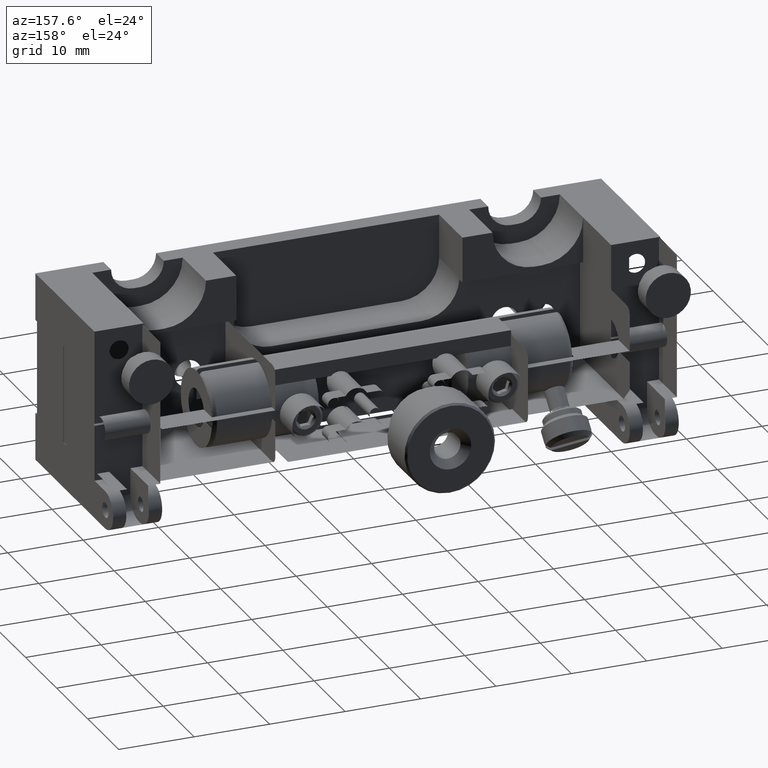
[diagram: clean part render]
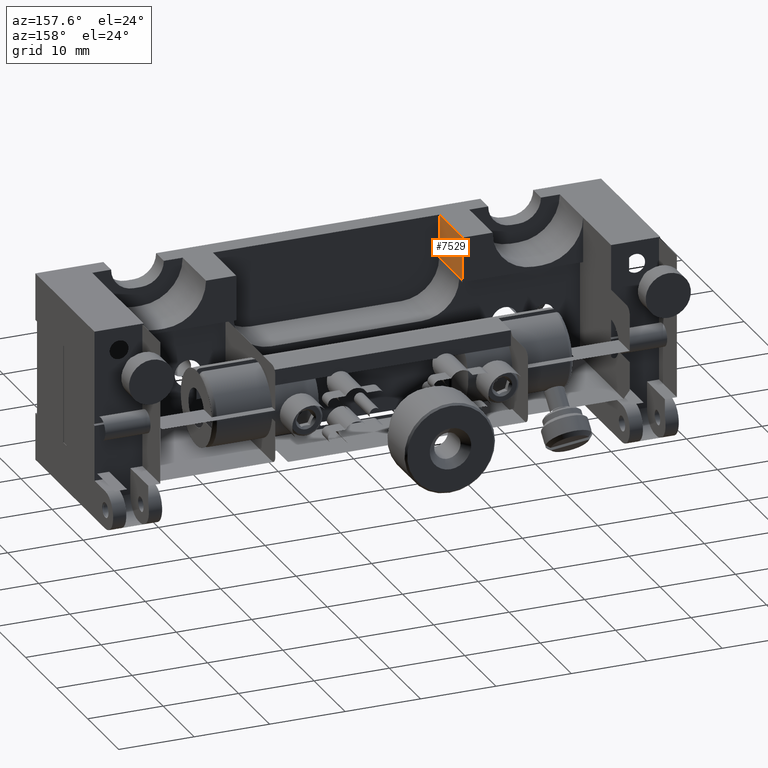
[diagram: same view with one face highlighted and labeled with its STEP entity id]
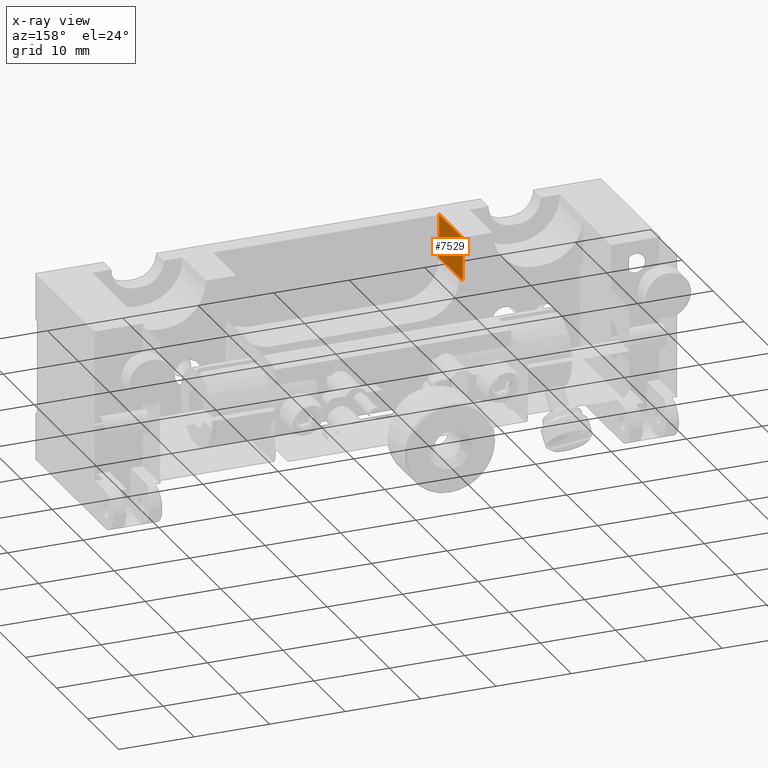
[diagram: x-ray of the same camera — body ghosted, the highlighted face saturated]
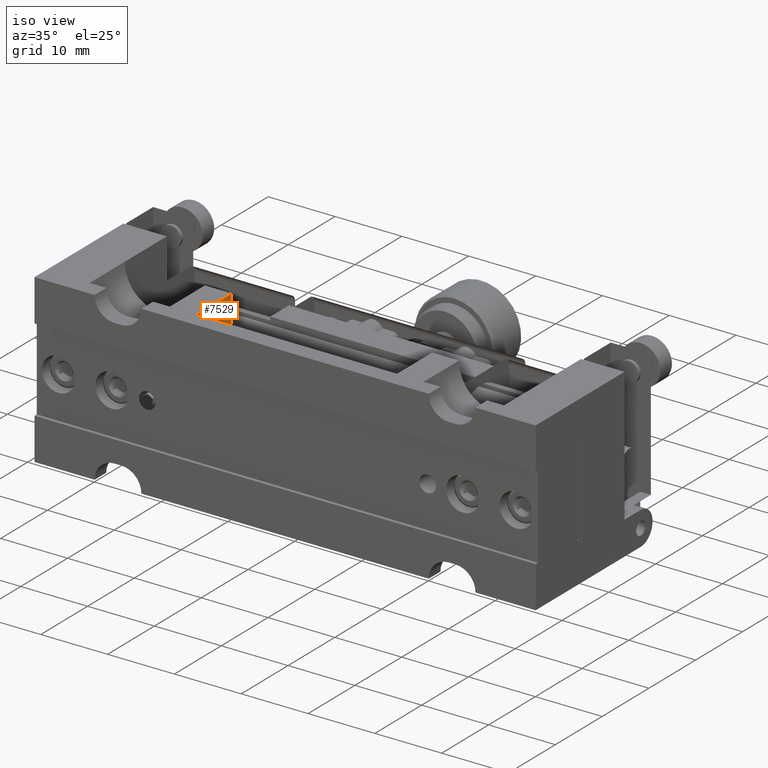
[diagram: same view with one face highlighted and labeled with its STEP entity id]
A machine part, auxiliary view. The second image highlights one B-rep face of the part: STEP entity #7529.
The next image is the same camera in x-ray: the body ghosted, the highlighted face saturated — about 0% of this face is hidden behind the body in this view.
A second angle (iso view) of the same face is appended — the face is thin or edge-on in the first view.
In plain terms, the highlighted planar face has unit normal (1, 0, -0).
Its self-contained STEP definition (entity closure, byte-faithful):
#702 = VERTEX_POINT ( 'NONE', #7940 ) ;
#1269 = EDGE_CURVE ( 'NONE', #3886, #702, #6157, .T. ) ;
#1718 = PLANE ( 'NONE',  #3864 ) ;
#3864 = AXIS2_PLACEMENT_3D ( 'NONE', #7960, #5675, #4997 ) ;
#3886 = VERTEX_POINT ( 'NONE', #14041 ) ;
#4362 = ORIENTED_EDGE ( 'NONE', *, *, #8344, .T. ) ;
#4615 = DIRECTION ( 'NONE',  ( 0.000000000000000000, 1.000000000000000000, 0.000000000000000000 ) ) ;
#4997 = DIRECTION ( 'NONE',  ( -8.068481283613053329E-17, 0.000000000000000000, -1.000000000000000000 ) ) ;
#5078 = EDGE_CURVE ( 'NONE', #12019, #5336, #12404, .T. ) ;
#5336 = VERTEX_POINT ( 'NONE', #7447 ) ;
#5675 = DIRECTION ( 'NONE',  ( 1.000000000000000000, 0.000000000000000000, -8.068481283613053329E-17 ) ) ;
#6078 = CARTESIAN_POINT ( 'NONE',  ( 4.826345966282490352, 38.17343476192750984, 78.43264947075056170 ) ) ;
#6157 = LINE ( 'NONE', #18618, #15544 ) ;
#6852 = ORIENTED_EDGE ( 'NONE', *, *, #8616, .F. ) ;
#7447 = CARTESIAN_POINT ( 'NONE',  ( 4.826345966282490352, 30.67343476192750629, 78.43264947075056170 ) ) ;
#7529 = ADVANCED_FACE ( 'NONE', ( #15723 ), #1718, .T. ) ;
#7940 = CARTESIAN_POINT ( 'NONE',  ( 4.826345966282489464, 38.17343476192750984, 72.68264947075056170 ) ) ;
#7960 = CARTESIAN_POINT ( 'NONE',  ( 4.826345966282490352, 30.67343476192750629, 89.18264947075056170 ) ) ;
#8344 = EDGE_CURVE ( 'NONE', #5336, #3886, #16786, .T. ) ;
#8616 = EDGE_CURVE ( 'NONE', #12019, #702, #13182, .T. ) ;
#9520 = EDGE_LOOP ( 'NONE', ( #6852, #10067, #4362, #15487 ) ) ;
#10067 = ORIENTED_EDGE ( 'NONE', *, *, #5078, .T. ) ;
#10232 = VECTOR ( 'NONE', #13726, 1000.000000000000000 ) ;
#10324 = DIRECTION ( 'NONE',  ( -0.000000000000000000, 0.000000000000000000, -1.000000000000000000 ) ) ;
#12019 = VERTEX_POINT ( 'NONE', #12223 ) ;
#12223 = CARTESIAN_POINT ( 'NONE',  ( 4.826345966282490352, 38.17343476192750984, 78.43264947075056170 ) ) ;
#12276 = DIRECTION ( 'NONE',  ( -8.068481283613053329E-17, 0.000000000000000000, -1.000000000000000000 ) ) ;
#12404 = LINE ( 'NONE', #6078, #10232 ) ;
#12941 = VECTOR ( 'NONE', #12276, 1000.000000000000000 ) ;
#13182 = LINE ( 'NONE', #13280, #15880 ) ;
#13280 = CARTESIAN_POINT ( 'NONE',  ( 4.826345966282490352, 38.17343476192750984, 65.93264947075056170 ) ) ;
#13726 = DIRECTION ( 'NONE',  ( -0.000000000000000000, -1.000000000000000000, -0.000000000000000000 ) ) ;
#13798 = CARTESIAN_POINT ( 'NONE',  ( 4.826345966282490352, 30.67343476192750629, 89.18264947075056170 ) ) ;
#14041 = CARTESIAN_POINT ( 'NONE',  ( 4.826345966282489464, 30.67343476192750629, 72.68264947075056170 ) ) ;
#15487 = ORIENTED_EDGE ( 'NONE', *, *, #1269, .T. ) ;
#15544 = VECTOR ( 'NONE', #4615, 1000.000000000000000 ) ;
#15723 = FACE_OUTER_BOUND ( 'NONE', #9520, .T. ) ;
#15880 = VECTOR ( 'NONE', #10324, 1000.000000000000000 ) ;
#16786 = LINE ( 'NONE', #13798, #12941 ) ;
#18618 = CARTESIAN_POINT ( 'NONE',  ( 4.826345966282489464, 30.67343476192750629, 72.68264947075056170 ) ) ;